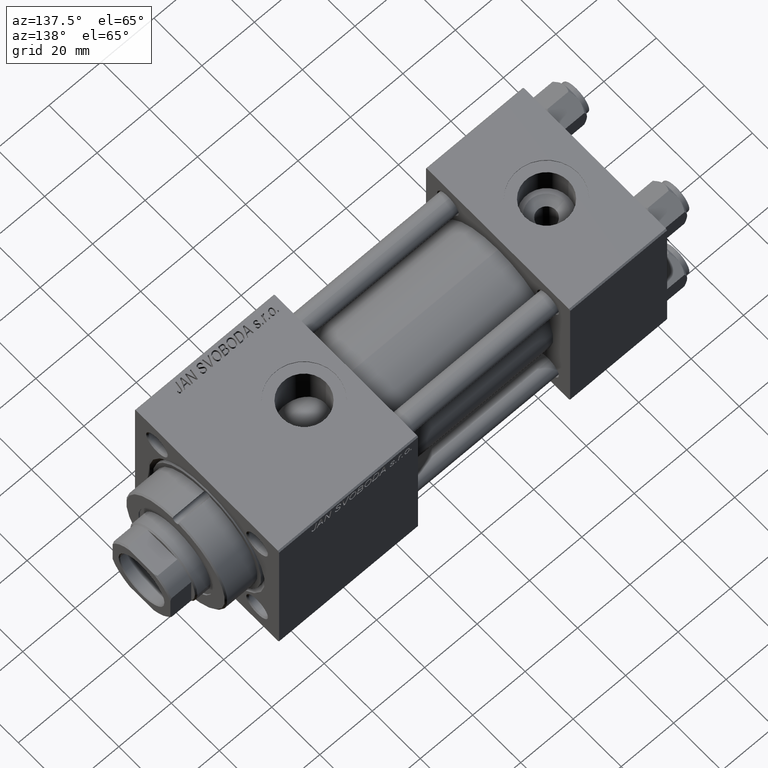
[diagram: clean part render]
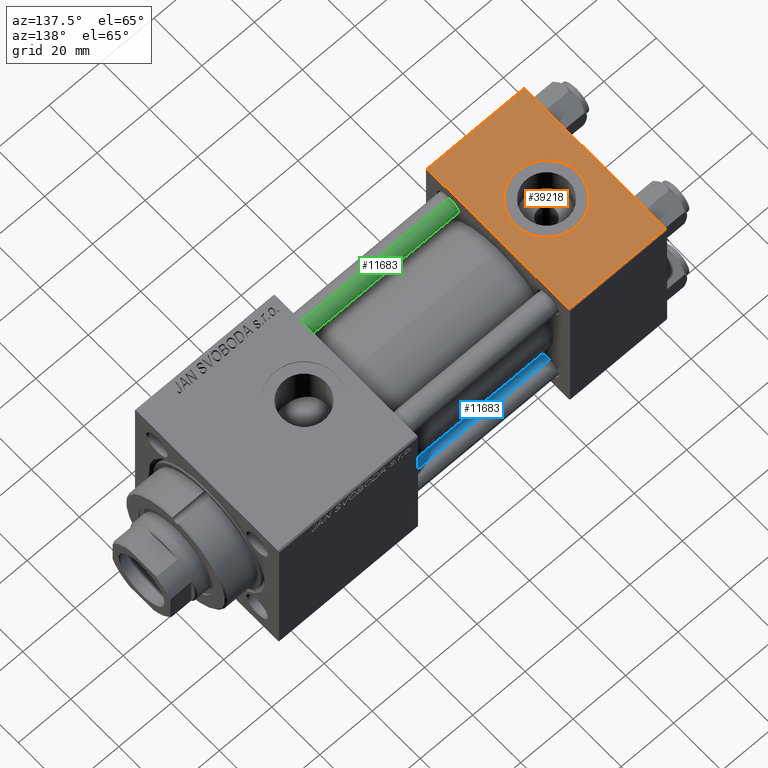
[diagram: same view with three faces highlighted in distinct colors, each labeled with its STEP entity id]
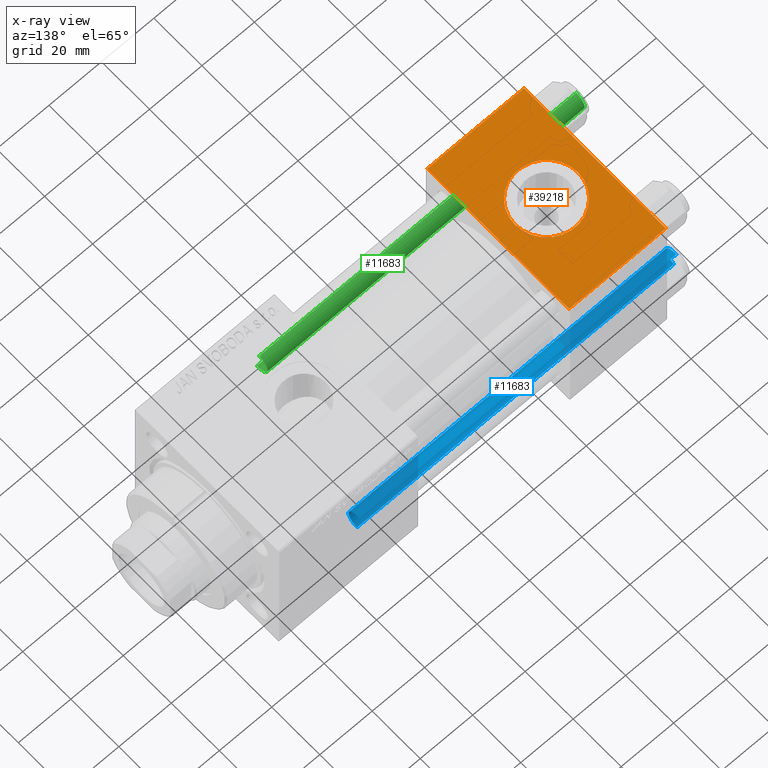
[diagram: x-ray of the same camera — body ghosted, the three highlighted faces saturated]
A machine part, auxiliary view with three faces highlighted in distinct colors.
The next image is the same camera in x-ray (body ghosted, the three faces saturated) — at least one of them is partly hidden behind the body in this view.
Their STEP definitions:

[orange] entity #39218 — the highlighted planar face has unit normal (0, 0, -1).
#1079 = EDGE_CURVE ( 'NONE', #52221, #13382, #43448, .T. ) ;
#1432 = VECTOR ( 'NONE', #35264, 1000.000000000000000 ) ;
#2610 = CARTESIAN_POINT ( 'NONE',  ( 37.00000000000000000, 29.99999999999999289, 30.00000000000000000 ) ) ;
#3122 = EDGE_LOOP ( 'NONE', ( #14848, #26173 ) ) ;
#3783 = FACE_BOUND ( 'NONE', #3122, .T. ) ;
#7021 = LINE ( 'NONE', #23123, #1432 ) ;
#7194 = EDGE_CURVE ( 'NONE', #7364, #50898, #7021, .T. ) ;
#7364 = VERTEX_POINT ( 'NONE', #48051 ) ;
#8670 = VERTEX_POINT ( 'NONE', #9991 ) ;
#8756 = DIRECTION ( 'NONE',  ( 1.000000000000000000, 0.000000000000000000, 0.000000000000000000 ) ) ;
#9964 = LINE ( 'NONE', #34248, #45548 ) ;
#9991 = CARTESIAN_POINT ( 'NONE',  ( 0.000000000000000000, -29.49999999999998579, 29.99999999999999289 ) ) ;
#11209 = VERTEX_POINT ( 'NONE', #41686 ) ;
#12459 = CARTESIAN_POINT ( 'NONE',  ( 37.00000000000000000, -29.50000000000000000, 29.99999999999999289 ) ) ;
#13250 = AXIS2_PLACEMENT_3D ( 'NONE', #2610, #34019, #26096 ) ;
#13382 = VERTEX_POINT ( 'NONE', #18025 ) ;
#13463 = VECTOR ( 'NONE', #8756, 1000.000000000000000 ) ;
#14364 = EDGE_CURVE ( 'NONE', #8670, #50898, #25132, .T. ) ;
#14520 = DIRECTION ( 'NONE',  ( 0.000000000000000000, 0.000000000000000000, 1.000000000000000000 ) ) ;
#14667 = DIRECTION ( 'NONE',  ( -1.000000000000000000, 0.000000000000000000, 0.000000000000000000 ) ) ;
#14848 = ORIENTED_EDGE ( 'NONE', *, *, #1079, .F. ) ;
#17442 = EDGE_CURVE ( 'NONE', #11209, #8670, #9964, .T. ) ;
#17840 = LINE ( 'NONE', #34725, #45902 ) ;
#18025 = CARTESIAN_POINT ( 'NONE',  ( 6.499999999999997335, -1.999870792976790833E-15, 29.99999999999999645 ) ) ;
#19209 = ORIENTED_EDGE ( 'NONE', *, *, #17442, .T. ) ;
#19423 = EDGE_CURVE ( 'NONE', #13382, #52221, #38768, .T. ) ;
#21360 = ORIENTED_EDGE ( 'NONE', *, *, #7194, .F. ) ;
#22672 = EDGE_LOOP ( 'NONE', ( #19209, #26374, #21360, #45125 ) ) ;
#23123 = CARTESIAN_POINT ( 'NONE',  ( 37.00000000000000000, 29.99999999999999289, 30.00000000000000000 ) ) ;
#23780 = DIRECTION ( 'NONE',  ( 1.000000000000000000, 0.000000000000000000, 0.000000000000000000 ) ) ;
#25132 = LINE ( 'NONE', #12459, #13463 ) ;
#26096 = DIRECTION ( 'NONE',  ( 0.000000000000000000, 1.000000000000000000, 1.156482317317871725E-16 ) ) ;
#26173 = ORIENTED_EDGE ( 'NONE', *, *, #19423, .F. ) ;
#26374 = ORIENTED_EDGE ( 'NONE', *, *, #14364, .T. ) ;
#27741 = DIRECTION ( 'NONE',  ( 0.000000000000000000, 0.000000000000000000, 1.000000000000000000 ) ) ;
#31169 = CARTESIAN_POINT ( 'NONE',  ( 18.50000000000000000, -3.469446951953614978E-15, 29.99999999999999645 ) ) ;
#31236 = EDGE_CURVE ( 'NONE', #7364, #11209, #17840, .T. ) ;
#31425 = DIRECTION ( 'NONE',  ( 1.000000000000000000, 0.000000000000000000, 0.000000000000000000 ) ) ;
#34019 = DIRECTION ( 'NONE',  ( 0.000000000000000000, 1.156482317317871725E-16, -1.000000000000000000 ) ) ;
#34248 = CARTESIAN_POINT ( 'NONE',  ( 0.000000000000000000, 29.99999999999999289, 30.00000000000000000 ) ) ;
#34725 = CARTESIAN_POINT ( 'NONE',  ( 0.000000000000000000, 29.49999999999999289, 30.00000000000000000 ) ) ;
#35264 = DIRECTION ( 'NONE',  ( 0.000000000000000000, -1.000000000000000000, -1.156482317317871725E-16 ) ) ;
#36252 = AXIS2_PLACEMENT_3D ( 'NONE', #47775, #27741, #23780 ) ;
#38768 = CIRCLE ( 'NONE', #36252, 12.00000000000000000 ) ;
#39218 = ADVANCED_FACE ( 'NONE', ( #3783, #52063 ), #42177, .F. ) ;
#41686 = CARTESIAN_POINT ( 'NONE',  ( 0.000000000000000000, 29.49999999999999289, 30.00000000000000000 ) ) ;
#42177 = PLANE ( 'NONE',  #13250 ) ;
#43448 = CIRCLE ( 'NONE', #50180, 12.00000000000000000 ) ;
#43916 = CARTESIAN_POINT ( 'NONE',  ( 37.00000000000000000, -29.49999999999998579, 29.99999999999999289 ) ) ;
#44111 = CARTESIAN_POINT ( 'NONE',  ( 30.50000000000000000, -3.469446951953614978E-15, 29.99999999999999645 ) ) ;
#45125 = ORIENTED_EDGE ( 'NONE', *, *, #31236, .T. ) ;
#45548 = VECTOR ( 'NONE', #50340, 1000.000000000000000 ) ;
#45902 = VECTOR ( 'NONE', #14667, 1000.000000000000000 ) ;
#47775 = CARTESIAN_POINT ( 'NONE',  ( 18.50000000000000000, -3.469446951953614978E-15, 29.99999999999999645 ) ) ;
#48051 = CARTESIAN_POINT ( 'NONE',  ( 37.00000000000000000, 29.49999999999999289, 30.00000000000000000 ) ) ;
#50180 = AXIS2_PLACEMENT_3D ( 'NONE', #31169, #14520, #31425 ) ;
#50340 = DIRECTION ( 'NONE',  ( 0.000000000000000000, -1.000000000000000000, -1.156482317317871725E-16 ) ) ;
#50898 = VERTEX_POINT ( 'NONE', #43916 ) ;
#52063 = FACE_OUTER_BOUND ( 'NONE', #22672, .T. ) ;
#52221 = VERTEX_POINT ( 'NONE', #44111 ) ;

[blue] entity #11683 — the highlighted cylindrical surface (edge-blend (fillet) strip) has radius 4 mm, axis along (1, -0, 0).
#232 = EDGE_LOOP ( 'NONE', ( #29542, #35915, #32011, #2065 ) ) ;
#2065 = ORIENTED_EDGE ( 'NONE', *, *, #14492, .T. ) ;
#2708 = FACE_OUTER_BOUND ( 'NONE', #232, .T. ) ;
#2730 = EDGE_CURVE ( 'NONE', #4548, #47428, #45206, .T. ) ;
#3241 = DIRECTION ( 'NONE',  ( -0.000000000000000000, -0.000000000000000000, -1.000000000000000000 ) ) ;
#4548 = VERTEX_POINT ( 'NONE', #14989 ) ;
#5887 = AXIS2_PLACEMENT_3D ( 'NONE', #15590, #43552, #51217 ) ;
#11403 = CARTESIAN_POINT ( 'NONE',  ( -4.000000000000000000, 0.000000000000000000, 122.0000000000000000 ) ) ;
#11683 = ADVANCED_FACE ( 'NONE', ( #2708 ), #14846, .T. ) ;
#13444 = VERTEX_POINT ( 'NONE', #35449 ) ;
#13496 = VECTOR ( 'NONE', #49501, 1000.000000000000000 ) ;
#14492 = EDGE_CURVE ( 'NONE', #45228, #13444, #48013, .T. ) ;
#14846 = CYLINDRICAL_SURFACE ( 'NONE', #48785, 4.000000000000000000 ) ;
#14850 = DIRECTION ( 'NONE',  ( -0.000000000000000000, -0.000000000000000000, -1.000000000000000000 ) ) ;
#14989 = CARTESIAN_POINT ( 'NONE',  ( 4.000000000000000000, 4.898587196589411843E-16, 121.5000000000000426 ) ) ;
#15590 = CARTESIAN_POINT ( 'NONE',  ( 0.000000000000000000, 0.000000000000000000, 0.5000000000000559552 ) ) ;
#16266 = DIRECTION ( 'NONE',  ( 0.000000000000000000, 0.000000000000000000, -1.000000000000000000 ) ) ;
#18617 = EDGE_CURVE ( 'NONE', #4548, #13444, #25241, .T. ) ;
#19849 = LINE ( 'NONE', #11403, #26872 ) ;
#22221 = CARTESIAN_POINT ( 'NONE',  ( -4.000000000000000000, 0.000000000000000000, 0.5000000000000559552 ) ) ;
#25241 = LINE ( 'NONE', #32654, #13496 ) ;
#26725 = CARTESIAN_POINT ( 'NONE',  ( 0.000000000000000000, 0.000000000000000000, 122.0000000000000000 ) ) ;
#26872 = VECTOR ( 'NONE', #14850, 1000.000000000000000 ) ;
#29542 = ORIENTED_EDGE ( 'NONE', *, *, #18617, .F. ) ;
#32011 = ORIENTED_EDGE ( 'NONE', *, *, #52193, .T. ) ;
#32638 = CARTESIAN_POINT ( 'NONE',  ( 0.000000000000000000, 0.000000000000000000, 121.5000000000000426 ) ) ;
#32654 = CARTESIAN_POINT ( 'NONE',  ( 4.000000000000000000, 4.898587196589411843E-16, 122.0000000000000000 ) ) ;
#34251 = AXIS2_PLACEMENT_3D ( 'NONE', #32638, #16266, #41054 ) ;
#34898 = DIRECTION ( 'NONE',  ( -1.000000000000000000, 0.000000000000000000, 0.000000000000000000 ) ) ;
#35449 = CARTESIAN_POINT ( 'NONE',  ( 4.000000000000000000, 4.898587196589411843E-16, 0.5000000000000559552 ) ) ;
#35915 = ORIENTED_EDGE ( 'NONE', *, *, #2730, .T. ) ;
#37962 = CARTESIAN_POINT ( 'NONE',  ( -4.000000000000000000, 0.000000000000000000, 121.5000000000000426 ) ) ;
#41054 = DIRECTION ( 'NONE',  ( 1.000000000000000000, 0.000000000000000000, 0.000000000000000000 ) ) ;
#43552 = DIRECTION ( 'NONE',  ( -0.000000000000000000, -0.000000000000000000, 1.000000000000000000 ) ) ;
#45206 = CIRCLE ( 'NONE', #34251, 4.000000000000000000 ) ;
#45228 = VERTEX_POINT ( 'NONE', #22221 ) ;
#47428 = VERTEX_POINT ( 'NONE', #37962 ) ;
#48013 = CIRCLE ( 'NONE', #5887, 4.000000000000000000 ) ;
#48785 = AXIS2_PLACEMENT_3D ( 'NONE', #26725, #3241, #34898 ) ;
#49501 = DIRECTION ( 'NONE',  ( -0.000000000000000000, -0.000000000000000000, -1.000000000000000000 ) ) ;
#51217 = DIRECTION ( 'NONE',  ( 1.000000000000000000, 0.000000000000000000, 0.000000000000000000 ) ) ;
#52193 = EDGE_CURVE ( 'NONE', #47428, #45228, #19849, .T. ) ;

[green] entity #11683 — the highlighted cylindrical surface (edge-blend (fillet) strip) has radius 4 mm, axis along (1, 0, -0).
#232 = EDGE_LOOP ( 'NONE', ( #29542, #35915, #32011, #2065 ) ) ;
#2065 = ORIENTED_EDGE ( 'NONE', *, *, #14492, .T. ) ;
#2708 = FACE_OUTER_BOUND ( 'NONE', #232, .T. ) ;
#2730 = EDGE_CURVE ( 'NONE', #4548, #47428, #45206, .T. ) ;
#3241 = DIRECTION ( 'NONE',  ( -0.000000000000000000, -0.000000000000000000, -1.000000000000000000 ) ) ;
#4548 = VERTEX_POINT ( 'NONE', #14989 ) ;
#5887 = AXIS2_PLACEMENT_3D ( 'NONE', #15590, #43552, #51217 ) ;
#11403 = CARTESIAN_POINT ( 'NONE',  ( -4.000000000000000000, 0.000000000000000000, 122.0000000000000000 ) ) ;
#11683 = ADVANCED_FACE ( 'NONE', ( #2708 ), #14846, .T. ) ;
#13444 = VERTEX_POINT ( 'NONE', #35449 ) ;
#13496 = VECTOR ( 'NONE', #49501, 1000.000000000000000 ) ;
#14492 = EDGE_CURVE ( 'NONE', #45228, #13444, #48013, .T. ) ;
#14846 = CYLINDRICAL_SURFACE ( 'NONE', #48785, 4.000000000000000000 ) ;
#14850 = DIRECTION ( 'NONE',  ( -0.000000000000000000, -0.000000000000000000, -1.000000000000000000 ) ) ;
#14989 = CARTESIAN_POINT ( 'NONE',  ( 4.000000000000000000, 4.898587196589411843E-16, 121.5000000000000426 ) ) ;
#15590 = CARTESIAN_POINT ( 'NONE',  ( 0.000000000000000000, 0.000000000000000000, 0.5000000000000559552 ) ) ;
#16266 = DIRECTION ( 'NONE',  ( 0.000000000000000000, 0.000000000000000000, -1.000000000000000000 ) ) ;
#18617 = EDGE_CURVE ( 'NONE', #4548, #13444, #25241, .T. ) ;
#19849 = LINE ( 'NONE', #11403, #26872 ) ;
#22221 = CARTESIAN_POINT ( 'NONE',  ( -4.000000000000000000, 0.000000000000000000, 0.5000000000000559552 ) ) ;
#25241 = LINE ( 'NONE', #32654, #13496 ) ;
#26725 = CARTESIAN_POINT ( 'NONE',  ( 0.000000000000000000, 0.000000000000000000, 122.0000000000000000 ) ) ;
#26872 = VECTOR ( 'NONE', #14850, 1000.000000000000000 ) ;
#29542 = ORIENTED_EDGE ( 'NONE', *, *, #18617, .F. ) ;
#32011 = ORIENTED_EDGE ( 'NONE', *, *, #52193, .T. ) ;
#32638 = CARTESIAN_POINT ( 'NONE',  ( 0.000000000000000000, 0.000000000000000000, 121.5000000000000426 ) ) ;
#32654 = CARTESIAN_POINT ( 'NONE',  ( 4.000000000000000000, 4.898587196589411843E-16, 122.0000000000000000 ) ) ;
#34251 = AXIS2_PLACEMENT_3D ( 'NONE', #32638, #16266, #41054 ) ;
#34898 = DIRECTION ( 'NONE',  ( -1.000000000000000000, 0.000000000000000000, 0.000000000000000000 ) ) ;
#35449 = CARTESIAN_POINT ( 'NONE',  ( 4.000000000000000000, 4.898587196589411843E-16, 0.5000000000000559552 ) ) ;
#35915 = ORIENTED_EDGE ( 'NONE', *, *, #2730, .T. ) ;
#37962 = CARTESIAN_POINT ( 'NONE',  ( -4.000000000000000000, 0.000000000000000000, 121.5000000000000426 ) ) ;
#41054 = DIRECTION ( 'NONE',  ( 1.000000000000000000, 0.000000000000000000, 0.000000000000000000 ) ) ;
#43552 = DIRECTION ( 'NONE',  ( -0.000000000000000000, -0.000000000000000000, 1.000000000000000000 ) ) ;
#45206 = CIRCLE ( 'NONE', #34251, 4.000000000000000000 ) ;
#45228 = VERTEX_POINT ( 'NONE', #22221 ) ;
#47428 = VERTEX_POINT ( 'NONE', #37962 ) ;
#48013 = CIRCLE ( 'NONE', #5887, 4.000000000000000000 ) ;
#48785 = AXIS2_PLACEMENT_3D ( 'NONE', #26725, #3241, #34898 ) ;
#49501 = DIRECTION ( 'NONE',  ( -0.000000000000000000, -0.000000000000000000, -1.000000000000000000 ) ) ;
#51217 = DIRECTION ( 'NONE',  ( 1.000000000000000000, 0.000000000000000000, 0.000000000000000000 ) ) ;
#52193 = EDGE_CURVE ( 'NONE', #47428, #45228, #19849, .T. ) ;